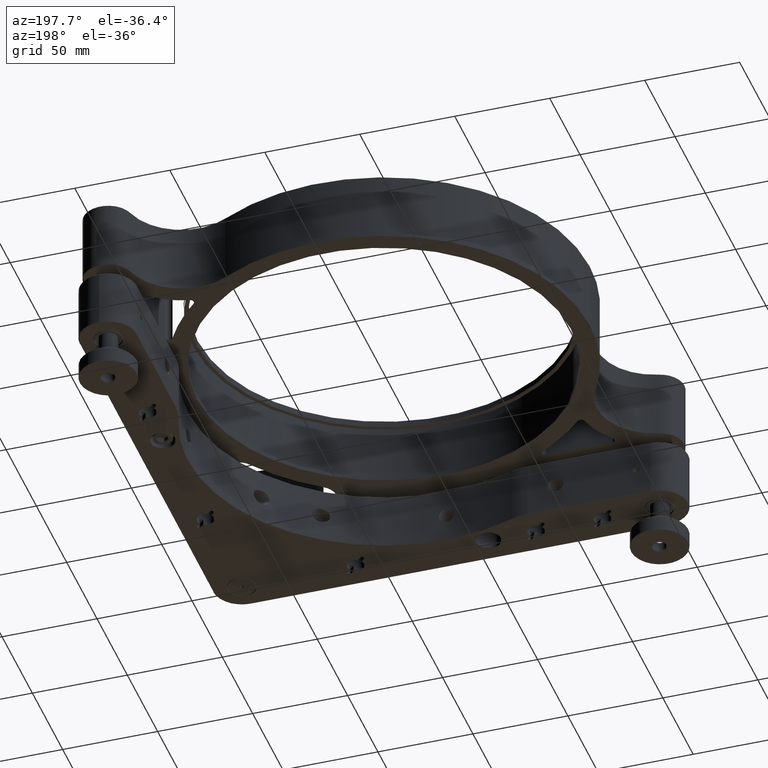
[diagram: clean part render]
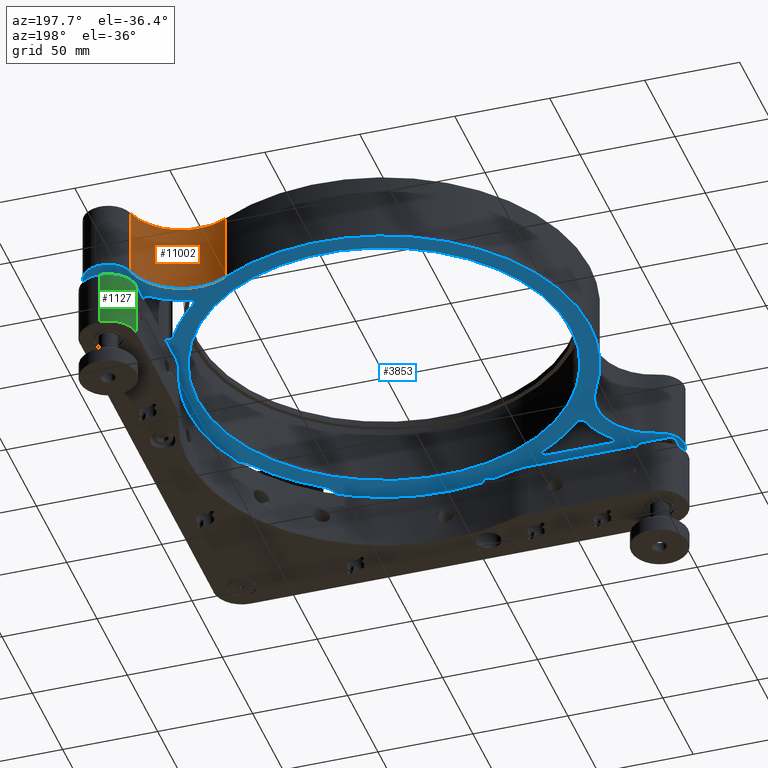
[diagram: same view with three faces highlighted in distinct colors, each labeled with its STEP entity id]
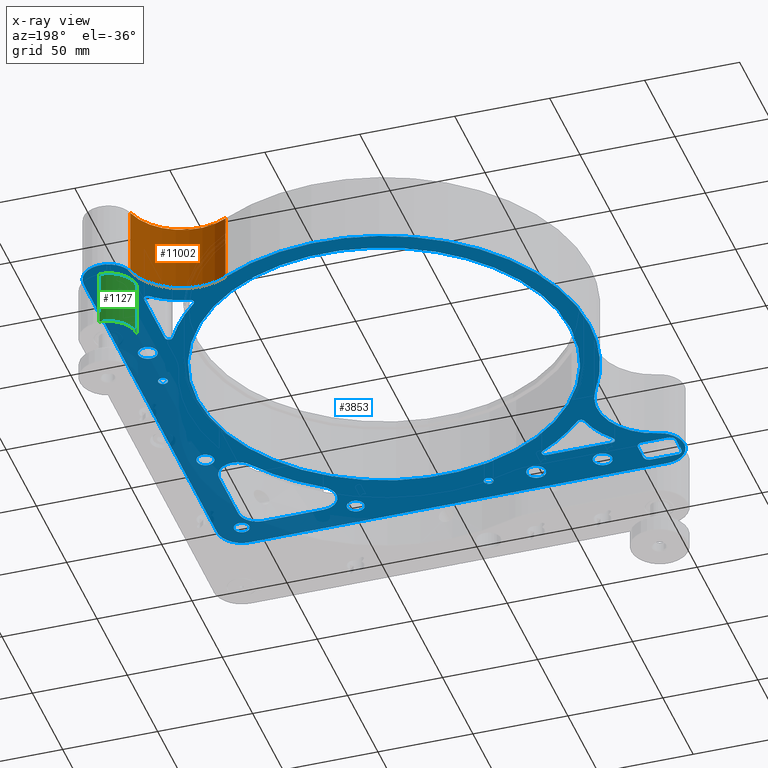
[diagram: x-ray of the same camera — body ghosted, the three highlighted faces saturated]
A machine part, auxiliary view with three faces highlighted in distinct colors.
The next image is the same camera in x-ray (body ghosted, the three faces saturated) — at least one of them is partly hidden behind the body in this view.
Their STEP definitions:

[orange] entity #11002 — the highlighted cylindrical surface (partial cylindrical patch) has radius 30 mm, axis along (-0, -0, -1).
#165 = AXIS2_PLACEMENT_3D ( 'NONE', #6759, #10565, #1960 ) ;
#293 = DIRECTION ( 'NONE',  ( -5.029013959943429289E-30, -1.224646799147301438E-16, -1.000000000000000000 ) ) ;
#617 = ORIENTED_EDGE ( 'NONE', *, *, #8552, .F. ) ;
#618 = CYLINDRICAL_SURFACE ( 'NONE', #5519, 29.99999999999974776 ) ;
#1162 = CIRCLE ( 'NONE', #165, 29.99999999999974776 ) ;
#1695 = CARTESIAN_POINT ( 'NONE',  ( -56.73887555725348619, 245.3376141936156216, 58.47156274847700530 ) ) ;
#1736 = CARTESIAN_POINT ( 'NONE',  ( -71.54070955278882593, 219.2434441480173462, 58.47056274847700763 ) ) ;
#1960 = DIRECTION ( 'NONE',  ( -1.000000000000000000, 0.000000000000000000, 0.000000000000000000 ) ) ;
#2185 = LINE ( 'NONE', #4144, #11370 ) ;
#2576 = VERTEX_POINT ( 'NONE', #10266 ) ;
#2754 = CIRCLE ( 'NONE', #3754, 29.99999999999974065 ) ;
#3524 = ORIENTED_EDGE ( 'NONE', *, *, #8802, .T. ) ;
#3754 = AXIS2_PLACEMENT_3D ( 'NONE', #5340, #9155, #11205 ) ;
#4144 = CARTESIAN_POINT ( 'NONE',  ( -71.54070955278882593, 219.2434441480173462, 58.47156274847700530 ) ) ;
#5011 = ORIENTED_EDGE ( 'NONE', *, *, #9309, .F. ) ;
#5199 = FACE_OUTER_BOUND ( 'NONE', #7907, .T. ) ;
#5270 = VERTEX_POINT ( 'NONE', #1736 ) ;
#5340 = CARTESIAN_POINT ( 'NONE',  ( -56.73887555725348619, 245.3376141936156216, 58.47056274847700763 ) ) ;
#5387 = CARTESIAN_POINT ( 'NONE',  ( -27.61872981963463403, 238.1253252213244878, 21.97056274847701474 ) ) ;
#5519 = AXIS2_PLACEMENT_3D ( 'NONE', #1695, #9949, #6566 ) ;
#6566 = DIRECTION ( 'NONE',  ( -1.000000000000000000, 0.000000000000000000, 0.000000000000000000 ) ) ;
#6759 = CARTESIAN_POINT ( 'NONE',  ( -56.73887555725348619, 245.3376141936156216, 21.97056274847713198 ) ) ;
#7781 = VECTOR ( 'NONE', #10636, 1000.000000000000000 ) ;
#7907 = EDGE_LOOP ( 'NONE', ( #3524, #10533, #5011, #617 ) ) ;
#8552 = EDGE_CURVE ( 'NONE', #2576, #5270, #2754, .T. ) ;
#8802 = EDGE_CURVE ( 'NONE', #2576, #8854, #11826, .T. ) ;
#8847 = CARTESIAN_POINT ( 'NONE',  ( -71.54070955278882593, 219.2434441480173462, 21.97056274847713553 ) ) ;
#8854 = VERTEX_POINT ( 'NONE', #5387 ) ;
#8888 = CARTESIAN_POINT ( 'NONE',  ( -27.61872981963463403, 238.1253252213244878, 58.47156274847700530 ) ) ;
#9155 = DIRECTION ( 'NONE',  ( -5.029013959943429289E-30, -1.224646799147301438E-16, -1.000000000000000000 ) ) ;
#9251 = VERTEX_POINT ( 'NONE', #8847 ) ;
#9309 = EDGE_CURVE ( 'NONE', #5270, #9251, #2185, .T. ) ;
#9692 = EDGE_CURVE ( 'NONE', #8854, #9251, #1162, .T. ) ;
#9949 = DIRECTION ( 'NONE',  ( -5.029013959943429289E-30, -1.224646799147301438E-16, -1.000000000000000000 ) ) ;
#10266 = CARTESIAN_POINT ( 'NONE',  ( -27.61872981963463403, 238.1253252213244878, 58.47056274847700763 ) ) ;
#10533 = ORIENTED_EDGE ( 'NONE', *, *, #9692, .T. ) ;
#10565 = DIRECTION ( 'NONE',  ( -5.029013959943429289E-30, -1.224646799147301438E-16, -1.000000000000000000 ) ) ;
#10636 = DIRECTION ( 'NONE',  ( -5.029013959943429289E-30, -1.224646799147301438E-16, -1.000000000000000000 ) ) ;
#11002 = ADVANCED_FACE ( 'NONE', ( #5199 ), #618, .F. ) ;
#11205 = DIRECTION ( 'NONE',  ( 1.000000000000000000, 0.000000000000000000, 0.000000000000000000 ) ) ;
#11370 = VECTOR ( 'NONE', #293, 1000.000000000000000 ) ;
#11826 = LINE ( 'NONE', #8888, #7781 ) ;

[blue] entity #3853 — the highlighted planar face has unit normal (0, 0, 1).
#15 = DIRECTION ( 'NONE',  ( 5.029013959943429289E-30, 1.224646799147301438E-16, 1.000000000000000000 ) ) ;
#31 = EDGE_CURVE ( 'NONE', #8602, #11193, #1854, .T. ) ;
#36 = CARTESIAN_POINT ( 'NONE',  ( -124.9999999999987352, 124.9999999999991473, 21.97056274847702895 ) ) ;
#56 = ORIENTED_EDGE ( 'NONE', *, *, #7583, .F. ) ;
#73 = VERTEX_POINT ( 'NONE', #1681 ) ;
#121 = CARTESIAN_POINT ( 'NONE',  ( -144.9999999999986073, 15.00000000000015277, 21.97056274847716040 ) ) ;
#127 = AXIS2_PLACEMENT_3D ( 'NONE', #3420, #5449, #646 ) ;
#165 = AXIS2_PLACEMENT_3D ( 'NONE', #6759, #10565, #1960 ) ;
#173 = DIRECTION ( 'NONE',  ( 1.000000000000000000, 0.000000000000000000, 0.000000000000000000 ) ) ;
#218 = VERTEX_POINT ( 'NONE', #8848 ) ;
#219 = PLANE ( 'NONE',  #11653 ) ;
#255 = AXIS2_PLACEMENT_3D ( 'NONE', #121, #9669, #8800 ) ;
#266 = AXIS2_PLACEMENT_3D ( 'NONE', #5717, #9651, #2990 ) ;
#288 = ORIENTED_EDGE ( 'NONE', *, *, #8955, .F. ) ;
#306 = VERTEX_POINT ( 'NONE', #7038 ) ;
#323 = EDGE_CURVE ( 'NONE', #10405, #9327, #9890, .T. ) ;
#462 = DIRECTION ( 'NONE',  ( -1.000000000000000000, 0.000000000000000000, 0.000000000000000000 ) ) ;
#463 = VERTEX_POINT ( 'NONE', #597 ) ;
#475 = CIRCLE ( 'NONE', #1480, 1.999999999999960032 ) ;
#480 = AXIS2_PLACEMENT_3D ( 'NONE', #10569, #1011, #4864 ) ;
#481 = CARTESIAN_POINT ( 'NONE',  ( -238.1253252213248004, 27.61872981963509233, 21.97056274847703961 ) ) ;
#486 = EDGE_CURVE ( 'NONE', #7936, #6182, #2678, .T. ) ;
#491 = CIRCLE ( 'NONE', #11728, 2.999999999999975131 ) ;
#521 = ORIENTED_EDGE ( 'NONE', *, *, #725, .T. ) ;
#530 = DIRECTION ( 'NONE',  ( -5.029013959943429289E-30, -1.224646799147301438E-16, -1.000000000000000000 ) ) ;
#541 = CARTESIAN_POINT ( 'NONE',  ( -26.99999999999967670, 179.4161970372784651, 21.97056274847702184 ) ) ;
#554 = DIRECTION ( 'NONE',  ( -5.029013959943429289E-30, -1.224646799147301438E-16, -1.000000000000000000 ) ) ;
#597 = CARTESIAN_POINT ( 'NONE',  ( -11.00000000000016165, 15.00000000000015277, 21.97056274847716040 ) ) ;
#620 = EDGE_CURVE ( 'NONE', #8237, #8280, #4001, .T. ) ;
#646 = DIRECTION ( 'NONE',  ( 0.000000000000000000, 1.000000000000000000, 0.000000000000000000 ) ) ;
#648 = DIRECTION ( 'NONE',  ( -1.000000000000000000, 0.000000000000000000, 0.000000000000000000 ) ) ;
#663 = CARTESIAN_POINT ( 'NONE',  ( -9.999999999999714007, 204.9999999999982094, 21.97056274847701829 ) ) ;
#680 = VECTOR ( 'NONE', #11376, 1000.000000000000000 ) ;
#720 = ORIENTED_EDGE ( 'NONE', *, *, #4214, .F. ) ;
#725 = EDGE_CURVE ( 'NONE', #2204, #2968, #3226, .T. ) ;
#786 = VERTEX_POINT ( 'NONE', #4195 ) ;
#805 = DIRECTION ( 'NONE',  ( -1.000000000000000000, 0.000000000000000000, 0.000000000000000000 ) ) ;
#821 = VERTEX_POINT ( 'NONE', #9389 ) ;
#822 = DIRECTION ( 'NONE',  ( 5.029013959943429289E-30, 1.224646799147301438E-16, 1.000000000000000000 ) ) ;
#833 = CIRCLE ( 'NONE', #11869, 108.3499999999991843 ) ;
#839 = DIRECTION ( 'NONE',  ( -5.029013959943429289E-30, -1.224646799147301438E-16, -1.000000000000000000 ) ) ;
#842 = CARTESIAN_POINT ( 'NONE',  ( -2.000000000000126565, 2.000000000000154543, 21.97056274847704316 ) ) ;
#860 = CARTESIAN_POINT ( 'NONE',  ( -58.64698575045701290, 27.00000000000012079, 21.97056274847703961 ) ) ;
#890 = ORIENTED_EDGE ( 'NONE', *, *, #2109, .F. ) ;
#902 = DIRECTION ( 'NONE',  ( 1.000000000000000000, 0.000000000000000000, 0.000000000000000000 ) ) ;
#920 = CIRCLE ( 'NONE', #6565, 4.999999999999966249 ) ;
#926 = CIRCLE ( 'NONE', #11755, 2.000000000000036415 ) ;
#928 = CARTESIAN_POINT ( 'NONE',  ( -241.9999999999986073, 10.50000000000064837, 21.97056274847704316 ) ) ;
#946 = CARTESIAN_POINT ( 'NONE',  ( -234.9999999999986073, 15.00000000000065192, 21.97056274847716040 ) ) ;
#952 = VECTOR ( 'NONE', #3187, 1000.000000000000000 ) ;
#965 = CARTESIAN_POINT ( 'NONE',  ( -9.999999999999699796, 169.9999999999991473, 21.97056274847702184 ) ) ;
#980 = FACE_BOUND ( 'NONE', #8030, .T. ) ;
#992 = ORIENTED_EDGE ( 'NONE', *, *, #6509, .T. ) ;
#1008 = CIRCLE ( 'NONE', #6258, 108.3499999999991559 ) ;
#1011 = DIRECTION ( 'NONE',  ( -5.029013959943429289E-30, -1.224646799147301438E-16, -1.000000000000000000 ) ) ;
#1020 = CARTESIAN_POINT ( 'NONE',  ( -247.9999999999986358, 15.00000000000017586, 21.97056274847716040 ) ) ;
#1034 = FACE_BOUND ( 'NONE', #3503, .T. ) ;
#1061 = DIRECTION ( 'NONE',  ( 1.000000000000000000, 0.000000000000000000, 0.000000000000000000 ) ) ;
#1064 = AXIS2_PLACEMENT_3D ( 'NONE', #9458, #839, #9271 ) ;
#1108 = CARTESIAN_POINT ( 'NONE',  ( -204.9999999999985789, 20.00000000000049383, 21.97056274847716040 ) ) ;
#1122 = CARTESIAN_POINT ( 'NONE',  ( -10.50000000000017231, 74.99999999999967315, 21.97056274847715329 ) ) ;
#1137 = ORIENTED_EDGE ( 'NONE', *, *, #8520, .F. ) ;
#1152 = ORIENTED_EDGE ( 'NONE', *, *, #5771, .T. ) ;
#1154 = DIRECTION ( 'NONE',  ( 5.029013959943429289E-30, 1.224646799147301438E-16, 1.000000000000000000 ) ) ;
#1162 = CIRCLE ( 'NONE', #165, 29.99999999999974776 ) ;
#1225 = DIRECTION ( 'NONE',  ( 5.029013959943429289E-30, 1.224646799147301438E-16, 1.000000000000000000 ) ) ;
#1243 = CARTESIAN_POINT ( 'NONE',  ( -169.9999999999986073, 20.00000000000010303, 21.97056274847716040 ) ) ;
#1336 = EDGE_LOOP ( 'NONE', ( #3195, #1137 ) ) ;
#1367 = CARTESIAN_POINT ( 'NONE',  ( -241.9999999999986073, 22.50000000000018474, 21.97056274847716040 ) ) ;
#1375 = CARTESIAN_POINT ( 'NONE',  ( -64.25349308037134222, 35.28052386987759803, 21.97056274847703961 ) ) ;
#1385 = VERTEX_POINT ( 'NONE', #7904 ) ;
#1445 = AXIS2_PLACEMENT_3D ( 'NONE', #2211, #6009, #11812 ) ;
#1446 = ORIENTED_EDGE ( 'NONE', *, *, #5436, .T. ) ;
#1459 = DIRECTION ( 'NONE',  ( -1.000000000000000000, 0.000000000000000000, 0.000000000000000000 ) ) ;
#1463 = VECTOR ( 'NONE', #4698, 1000.000000000000000 ) ;
#1480 = AXIS2_PLACEMENT_3D ( 'NONE', #11572, #6959, #2033 ) ;
#1485 = EDGE_CURVE ( 'NONE', #5663, #463, #4515, .T. ) ;
#1502 = AXIS2_PLACEMENT_3D ( 'NONE', #9175, #5236, #11166 ) ;
#1507 = EDGE_CURVE ( 'NONE', #4953, #11546, #5532, .T. ) ;
#1520 = AXIS2_PLACEMENT_3D ( 'NONE', #2333, #4347, #9921 ) ;
#1529 = CARTESIAN_POINT ( 'NONE',  ( -241.9999999999986073, 7.500000000000644818, 21.97056274847704316 ) ) ;
#1584 = ORIENTED_EDGE ( 'NONE', *, *, #5808, .F. ) ;
#1593 = CARTESIAN_POINT ( 'NONE',  ( -204.9999999999985789, 10.00000000000058797, 21.97056274847716040 ) ) ;
#1623 = EDGE_CURVE ( 'NONE', #11867, #10710, #3703, .T. ) ;
#1629 = EDGE_LOOP ( 'NONE', ( #2450, #9412 ) ) ;
#1637 = EDGE_CURVE ( 'NONE', #1816, #11883, #8541, .T. ) ;
#1645 = EDGE_CURVE ( 'NONE', #4675, #3818, #5774, .T. ) ;
#1681 = CARTESIAN_POINT ( 'NONE',  ( -169.9999999999986073, 10.00000000000017231, 21.97056274847716040 ) ) ;
#1718 = DIRECTION ( 'NONE',  ( 0.000000000000000000, 1.000000000000000000, 0.000000000000000000 ) ) ;
#1725 = ORIENTED_EDGE ( 'NONE', *, *, #8057, .T. ) ;
#1762 = DIRECTION ( 'NONE',  ( 5.029013959943429289E-30, 1.224646799147301438E-16, 1.000000000000000000 ) ) ;
#1770 = DIRECTION ( 'NONE',  ( 1.000000000000000000, 0.000000000000000000, 0.000000000000000000 ) ) ;
#1816 = VERTEX_POINT ( 'NONE', #965 ) ;
#1854 = CIRCLE ( 'NONE', #7492, 4.999999999999966249 ) ;
#1911 = VERTEX_POINT ( 'NONE', #7198 ) ;
#1917 = AXIS2_PLACEMENT_3D ( 'NONE', #6045, #3129, #173 ) ;
#1960 = DIRECTION ( 'NONE',  ( -1.000000000000000000, 0.000000000000000000, 0.000000000000000000 ) ) ;
#1966 = DIRECTION ( 'NONE',  ( -5.029013959943429289E-30, -1.224646799147301438E-16, -1.000000000000000000 ) ) ;
#1972 = LINE ( 'NONE', #11500, #9666 ) ;
#2033 = DIRECTION ( 'NONE',  ( -1.000000000000000000, 0.000000000000000000, 0.000000000000000000 ) ) ;
#2073 = VECTOR ( 'NONE', #8838, 1000.000000000000000 ) ;
#2084 = LINE ( 'NONE', #4040, #680 ) ;
#2092 = CIRCLE ( 'NONE', #8338, 12.99999999999990052 ) ;
#2109 = EDGE_CURVE ( 'NONE', #786, #3426, #8152, .T. ) ;
#2112 = FACE_BOUND ( 'NONE', #1629, .T. ) ;
#2124 = AXIS2_PLACEMENT_3D ( 'NONE', #3734, #11377, #2794 ) ;
#2143 = DIRECTION ( 'NONE',  ( 1.000000000000000000, 0.000000000000000000, 0.000000000000000000 ) ) ;
#2204 = VERTEX_POINT ( 'NONE', #8055 ) ;
#2211 = CARTESIAN_POINT ( 'NONE',  ( -14.99999999999966604, 234.9999999999982379, 21.97056274847701474 ) ) ;
#2259 = CARTESIAN_POINT ( 'NONE',  ( -241.9999999999986073, 19.50000000000018474, 21.97056274847716040 ) ) ;
#2278 = AXIS2_PLACEMENT_3D ( 'NONE', #7295, #9426, #5419 ) ;
#2333 = CARTESIAN_POINT ( 'NONE',  ( -15.00000000000013856, 74.99999999999967315, 21.97056274847715329 ) ) ;
#2357 = EDGE_CURVE ( 'NONE', #3818, #4953, #10741, .T. ) ;
#2440 = DIRECTION ( 'NONE',  ( 1.000000000000000000, 0.000000000000000000, 0.000000000000000000 ) ) ;
#2450 = ORIENTED_EDGE ( 'NONE', *, *, #10085, .F. ) ;
#2460 = VERTEX_POINT ( 'NONE', #12148 ) ;
#2490 = AXIS2_PLACEMENT_3D ( 'NONE', #5898, #1154, #5012 ) ;
#2492 = EDGE_CURVE ( 'NONE', #11546, #306, #7561, .T. ) ;
#2496 = DIRECTION ( 'NONE',  ( -1.000000000000000000, 7.516923690933632071E-16, 4.680508140089289442E-30 ) ) ;
#2539 = DIRECTION ( 'NONE',  ( 5.029013959943429289E-30, 1.224646799147301438E-16, 1.000000000000000000 ) ) ;
#2651 = EDGE_CURVE ( 'NONE', #6850, #8799, #1972, .T. ) ;
#2678 = CIRCLE ( 'NONE', #5308, 4.999999999999952038 ) ;
#2683 = CIRCLE ( 'NONE', #4296, 4.999999999999966249 ) ;
#2696 = DIRECTION ( 'NONE',  ( 1.000000000000000000, 0.000000000000000000, 0.000000000000000000 ) ) ;
#2702 = CIRCLE ( 'NONE', #11515, 39.99999999999964473 ) ;
#2722 = CIRCLE ( 'NONE', #6554, 2.499999999999974243 ) ;
#2745 = CIRCLE ( 'NONE', #11347, 39.99999999999964473 ) ;
#2767 = DIRECTION ( 'NONE',  ( -5.029013959943429289E-30, -1.224646799147301438E-16, -1.000000000000000000 ) ) ;
#2794 = DIRECTION ( 'NONE',  ( 1.000000000000000000, 0.000000000000000000, 0.000000000000000000 ) ) ;
#2854 = DIRECTION ( 'NONE',  ( -1.000000000000000000, -4.940296223818292595E-16, 4.833065085038043241E-30 ) ) ;
#2889 = CARTESIAN_POINT ( 'NONE',  ( -206.1771496335828431, 48.58669698693399397, 21.97056274847715684 ) ) ;
#2968 = VERTEX_POINT ( 'NONE', #8390 ) ;
#2972 = CARTESIAN_POINT ( 'NONE',  ( -124.9999999999987352, 124.9999999999991473, 21.97056274847702895 ) ) ;
#2990 = DIRECTION ( 'NONE',  ( 1.000000000000000000, 0.000000000000000000, 0.000000000000000000 ) ) ;
#3056 = ORIENTED_EDGE ( 'NONE', *, *, #7498, .F. ) ;
#3084 = EDGE_CURVE ( 'NONE', #11076, #9847, #1008, .T. ) ;
#3103 = CARTESIAN_POINT ( 'NONE',  ( -244.9999999999986073, 19.50000000000018474, 21.97056274847716040 ) ) ;
#3113 = FACE_BOUND ( 'NONE', #5677, .T. ) ;
#3129 = DIRECTION ( 'NONE',  ( -5.029013959943429289E-30, -1.224646799147301438E-16, -1.000000000000000000 ) ) ;
#3176 = FACE_BOUND ( 'NONE', #4673, .T. ) ;
#3182 = CARTESIAN_POINT ( 'NONE',  ( -15.00000000000013856, 15.00000000000015277, 21.97056274847716040 ) ) ;
#3187 = DIRECTION ( 'NONE',  ( 5.551115123125783935E-17, -1.000000000000000000, 1.224646799147298233E-16 ) ) ;
#3195 = ORIENTED_EDGE ( 'NONE', *, *, #11761, .F. ) ;
#3207 = LINE ( 'NONE', #8060, #11477 ) ;
#3211 = ORIENTED_EDGE ( 'NONE', *, *, #12317, .F. ) ;
#3226 = LINE ( 'NONE', #8028, #2073 ) ;
#3230 = CARTESIAN_POINT ( 'NONE',  ( -15.00000000000013856, 15.00000000000015277, 21.97056274847716040 ) ) ;
#3234 = ORIENTED_EDGE ( 'NONE', *, *, #10923, .F. ) ;
#3314 = CARTESIAN_POINT ( 'NONE',  ( -227.9999999999985789, 7.500000000000644818, 21.97056274847704316 ) ) ;
#3322 = AXIS2_PLACEMENT_3D ( 'NONE', #946, #8753, #9746 ) ;
#3335 = CIRCLE ( 'NONE', #127, 4.999999999999966249 ) ;
#3351 = CIRCLE ( 'NONE', #8588, 108.3499999999991843 ) ;
#3385 = VECTOR ( 'NONE', #5865, 1000.000000000000000 ) ;
#3389 = DIRECTION ( 'NONE',  ( -1.000000000000000000, 0.000000000000000000, 0.000000000000000000 ) ) ;
#3420 = CARTESIAN_POINT ( 'NONE',  ( -169.9999999999986073, 15.00000000000013856, 21.97056274847716040 ) ) ;
#3426 = VERTEX_POINT ( 'NONE', #5736 ) ;
#3481 = CIRCLE ( 'NONE', #1064, 9.999999999999918288 ) ;
#3503 = EDGE_LOOP ( 'NONE', ( #1446, #6976 ) ) ;
#3525 = CIRCLE ( 'NONE', #8750, 108.3499999999991843 ) ;
#3570 = EDGE_CURVE ( 'NONE', #8731, #10729, #8233, .T. ) ;
#3572 = VERTEX_POINT ( 'NONE', #5408 ) ;
#3652 = CARTESIAN_POINT ( 'NONE',  ( -124.9999999999987352, 124.9999999999991473, 21.97056274847702895 ) ) ;
#3683 = CIRCLE ( 'NONE', #2278, 4.999999999999952038 ) ;
#3697 = CARTESIAN_POINT ( 'NONE',  ( -14.99999999999966604, 234.9999999999982379, 21.97056274847701474 ) ) ;
#3703 = CIRCLE ( 'NONE', #5327, 98.34999999999929798 ) ;
#3734 = CARTESIAN_POINT ( 'NONE',  ( -204.2191264055812212, 48.17908805841800302, 21.97056274847715684 ) ) ;
#3765 = ORIENTED_EDGE ( 'NONE', *, *, #486, .F. ) ;
#3798 = CARTESIAN_POINT ( 'NONE',  ( -27.00000000000020606, 17.00000000000012790, 21.97056274847716040 ) ) ;
#3818 = VERTEX_POINT ( 'NONE', #9652 ) ;
#3836 = DIRECTION ( 'NONE',  ( -1.000000000000000000, -5.551115123125783935E-17, 4.779362060831879158E-30 ) ) ;
#3853 = ADVANCED_FACE ( 'NONE', ( #5789, #3945, #7028, #1034, #11641, #9830, #2112, #4892, #3113, #3176, #5018, #7784, #9597, #4005, #11776, #980 ), #219, .F. ) ;
#3945 = FACE_BOUND ( 'NONE', #5240, .T. ) ;
#3958 = CARTESIAN_POINT ( 'NONE',  ( -48.58669698693338290, 206.1771496335825020, 21.97056274847701829 ) ) ;
#3981 = AXIS2_PLACEMENT_3D ( 'NONE', #6021, #5196, #5065 ) ;
#4001 = LINE ( 'NONE', #842, #1463 ) ;
#4005 = FACE_OUTER_BOUND ( 'NONE', #8189, .T. ) ;
#4040 = CARTESIAN_POINT ( 'NONE',  ( -17.00000000000012790, 27.00000000000021672, 21.97056274847703961 ) ) ;
#4069 = VERTEX_POINT ( 'NONE', #6459 ) ;
#4137 = EDGE_CURVE ( 'NONE', #9251, #8776, #833, .T. ) ;
#4195 = CARTESIAN_POINT ( 'NONE',  ( -215.8010515588077851, 29.00000000000019185, 21.97056274847703961 ) ) ;
#4214 = EDGE_CURVE ( 'NONE', #8237, #8854, #11059, .T. ) ;
#4222 = CARTESIAN_POINT ( 'NONE',  ( -219.2434441480177725, 71.54070955278935173, 21.97056274847715329 ) ) ;
#4230 = ORIENTED_EDGE ( 'NONE', *, *, #9692, .F. ) ;
#4259 = ORIENTED_EDGE ( 'NONE', *, *, #1507, .F. ) ;
#4277 = AXIS2_PLACEMENT_3D ( 'NONE', #12378, #1762, #5616 ) ;
#4296 = AXIS2_PLACEMENT_3D ( 'NONE', #8172, #8358, #6468 ) ;
#4347 = DIRECTION ( 'NONE',  ( -5.029013959943429289E-30, -1.224646799147301438E-16, -1.000000000000000000 ) ) ;
#4372 = ORIENTED_EDGE ( 'NONE', *, *, #3084, .F. ) ;
#4417 = EDGE_CURVE ( 'NONE', #2460, #3572, #10312, .T. ) ;
#4432 = CARTESIAN_POINT ( 'NONE',  ( -144.9999999999986073, 15.00000000000015277, 21.97056274847716040 ) ) ;
#4446 = EDGE_CURVE ( 'NONE', #8439, #10686, #8126, .T. ) ;
#4489 = DIRECTION ( 'NONE',  ( -1.000000000000000000, 0.000000000000000000, 0.000000000000000000 ) ) ;
#4510 = ORIENTED_EDGE ( 'NONE', *, *, #12355, .F. ) ;
#4515 = CIRCLE ( 'NONE', #7322, 3.999999999999976019 ) ;
#4530 = EDGE_CURVE ( 'NONE', #821, #1385, #5303, .T. ) ;
#4541 = CARTESIAN_POINT ( 'NONE',  ( -227.9999999999985789, 22.50000000000018474, 21.97056274847716040 ) ) ;
#4563 = CARTESIAN_POINT ( 'NONE',  ( -1.999999999999640954, 234.9999999999982379, 21.97056274847701474 ) ) ;
#4570 = ORIENTED_EDGE ( 'NONE', *, *, #6425, .F. ) ;
#4615 = DIRECTION ( 'NONE',  ( 1.000000000000000000, 0.000000000000000000, 0.000000000000000000 ) ) ;
#4622 = CARTESIAN_POINT ( 'NONE',  ( -124.9999999999987352, 124.9999999999991473, 21.97056274847702895 ) ) ;
#4663 = DIRECTION ( 'NONE',  ( 5.029013959943429289E-30, 1.224646799147301438E-16, 1.000000000000000000 ) ) ;
#4673 = EDGE_LOOP ( 'NONE', ( #8889, #1725, #5460, #9681, #11734, #992, #3211, #10372 ) ) ;
#4675 = VERTEX_POINT ( 'NONE', #7350 ) ;
#4692 = ORIENTED_EDGE ( 'NONE', *, *, #11922, .F. ) ;
#4698 = DIRECTION ( 'NONE',  ( 1.721276007170807843E-18, -1.000000000000000000, 1.224646799147298233E-16 ) ) ;
#4729 = AXIS2_PLACEMENT_3D ( 'NONE', #7480, #11099, #2440 ) ;
#4736 = VERTEX_POINT ( 'NONE', #3314 ) ;
#4753 = CIRCLE ( 'NONE', #9953, 98.34999999999929798 ) ;
#4754 = CARTESIAN_POINT ( 'NONE',  ( -244.9999999999986073, 10.50000000000064837, 21.97056274847704316 ) ) ;
#4759 = DIRECTION ( 'NONE',  ( 5.029013959943429289E-30, 1.224646799147301438E-16, 1.000000000000000000 ) ) ;
#4830 = DIRECTION ( 'NONE',  ( 4.772563905464644011E-30, 1.224646799147301438E-16, 1.000000000000000000 ) ) ;
#4832 = EDGE_CURVE ( 'NONE', #11193, #8602, #6695, .T. ) ;
#4833 = ORIENTED_EDGE ( 'NONE', *, *, #1623, .T. ) ;
#4864 = DIRECTION ( 'NONE',  ( -1.000000000000000000, 0.000000000000000000, 0.000000000000000000 ) ) ;
#4892 = FACE_BOUND ( 'NONE', #10942, .T. ) ;
#4906 = EDGE_CURVE ( 'NONE', #4069, #7860, #3207, .T. ) ;
#4953 = VERTEX_POINT ( 'NONE', #1375 ) ;
#5012 = DIRECTION ( 'NONE',  ( 0.000000000000000000, 1.000000000000000000, 0.000000000000000000 ) ) ;
#5018 = FACE_BOUND ( 'NONE', #10580, .T. ) ;
#5021 = EDGE_CURVE ( 'NONE', #6182, #7936, #3683, .T. ) ;
#5030 = CARTESIAN_POINT ( 'NONE',  ( -19.50000000000010303, 74.99999999999967315, 21.97056274847715329 ) ) ;
#5051 = CARTESIAN_POINT ( 'NONE',  ( -49.57140182265090544, 202.7833470416373416, 21.97056274847701829 ) ) ;
#5065 = DIRECTION ( 'NONE',  ( 1.000000000000000000, 0.000000000000000000, 0.000000000000000000 ) ) ;
#5179 = DIRECTION ( 'NONE',  ( -5.029013959943429289E-30, -1.224646799147301438E-16, -1.000000000000000000 ) ) ;
#5196 = DIRECTION ( 'NONE',  ( 5.029013959943429289E-30, 1.224646799147301438E-16, 1.000000000000000000 ) ) ;
#5236 = DIRECTION ( 'NONE',  ( -5.029013959943429289E-30, -1.224646799147301438E-16, -1.000000000000000000 ) ) ;
#5240 = EDGE_LOOP ( 'NONE', ( #3056, #56, #3234, #4372, #4570, #5606 ) ) ;
#5254 = ORIENTED_EDGE ( 'NONE', *, *, #7266, .F. ) ;
#5278 = DIRECTION ( 'NONE',  ( 1.000000000000000000, 0.000000000000000000, 0.000000000000000000 ) ) ;
#5284 = CARTESIAN_POINT ( 'NONE',  ( -179.4161970372779535, 27.00000000000016342, 21.97056274847703961 ) ) ;
#5291 = EDGE_CURVE ( 'NONE', #1911, #4675, #3481, .T. ) ;
#5303 = CIRCLE ( 'NONE', #255, 2.499999999999974243 ) ;
#5308 = AXIS2_PLACEMENT_3D ( 'NONE', #5713, #7716, #11580 ) ;
#5327 = AXIS2_PLACEMENT_3D ( 'NONE', #4622, #4759, #902 ) ;
#5353 = ORIENTED_EDGE ( 'NONE', *, *, #7238, .F. ) ;
#5355 = CIRCLE ( 'NONE', #2124, 1.999999999999974021 ) ;
#5363 = DIRECTION ( 'NONE',  ( -1.000000000000000000, 0.000000000000000000, 0.000000000000000000 ) ) ;
#5387 = CARTESIAN_POINT ( 'NONE',  ( -27.61872981963463403, 238.1253252213244878, 21.97056274847701474 ) ) ;
#5408 = CARTESIAN_POINT ( 'NONE',  ( -74.99999999999914735, 19.50000000000013145, 21.97056274847716040 ) ) ;
#5419 = DIRECTION ( 'NONE',  ( -1.000000000000000000, 0.000000000000000000, 0.000000000000000000 ) ) ;
#5436 = EDGE_CURVE ( 'NONE', #3572, #2460, #10703, .T. ) ;
#5449 = DIRECTION ( 'NONE',  ( 5.029013959943429289E-30, 1.224646799147301438E-16, 1.000000000000000000 ) ) ;
#5451 = CARTESIAN_POINT ( 'NONE',  ( -124.9999999999987352, 124.9999999999991473, 21.97056274847702895 ) ) ;
#5460 = ORIENTED_EDGE ( 'NONE', *, *, #10167, .F. ) ;
#5502 = CARTESIAN_POINT ( 'NONE',  ( -19.00000000000011369, 15.00000000000015277, 21.97056274847716040 ) ) ;
#5532 = CIRCLE ( 'NONE', #6143, 108.3499999999992127 ) ;
#5606 = ORIENTED_EDGE ( 'NONE', *, *, #4906, .F. ) ;
#5616 = DIRECTION ( 'NONE',  ( 0.000000000000000000, 1.000000000000000000, 0.000000000000000000 ) ) ;
#5617 = ORIENTED_EDGE ( 'NONE', *, *, #5021, .F. ) ;
#5619 = AXIS2_PLACEMENT_3D ( 'NONE', #10373, #9430, #805 ) ;
#5663 = VERTEX_POINT ( 'NONE', #5502 ) ;
#5667 = DIRECTION ( 'NONE',  ( 5.029013959943429289E-30, 1.224646799147301438E-16, 1.000000000000000000 ) ) ;
#5677 = EDGE_LOOP ( 'NONE', ( #5617, #3765 ) ) ;
#5682 = EDGE_CURVE ( 'NONE', #10686, #8439, #6735, .T. ) ;
#5687 = DIRECTION ( 'NONE',  ( -1.000000000000000000, 0.000000000000000000, 0.000000000000000000 ) ) ;
#5688 = ORIENTED_EDGE ( 'NONE', *, *, #1645, .F. ) ;
#5713 = CARTESIAN_POINT ( 'NONE',  ( -14.99999999999966604, 204.9999999999982094, 21.97056274847701829 ) ) ;
#5717 = CARTESIAN_POINT ( 'NONE',  ( -227.9999999999985789, 19.50000000000018474, 21.97056274847716040 ) ) ;
#5736 = CARTESIAN_POINT ( 'NONE',  ( -215.3027926366557949, 30.32089883605991432, 21.97056274847703961 ) ) ;
#5738 = CARTESIAN_POINT ( 'NONE',  ( -74.99999999999914735, 15.00000000000016520, 21.97056274847716040 ) ) ;
#5756 = ORIENTED_EDGE ( 'NONE', *, *, #7251, .T. ) ;
#5771 = EDGE_CURVE ( 'NONE', #8280, #2204, #2092, .T. ) ;
#5774 = LINE ( 'NONE', #3798, #7135 ) ;
#5777 = CIRCLE ( 'NONE', #1520, 4.499999999999966249 ) ;
#5786 = CIRCLE ( 'NONE', #8385, 2.499999999999967581 ) ;
#5789 = FACE_BOUND ( 'NONE', #7219, .T. ) ;
#5808 = EDGE_CURVE ( 'NONE', #306, #1911, #2084, .T. ) ;
#5853 = EDGE_CURVE ( 'NONE', #9379, #8731, #7931, .T. ) ;
#5865 = DIRECTION ( 'NONE',  ( 1.000000000000000000, 5.551115123125783935E-17, -4.779362060831879158E-30 ) ) ;
#5870 = CARTESIAN_POINT ( 'NONE',  ( -245.3376141936159911, 56.73887555725409726, 21.97056274847703605 ) ) ;
#5891 = CARTESIAN_POINT ( 'NONE',  ( -178.4299496963213016, 30.73991844132321916, 21.97056274847703961 ) ) ;
#5898 = CARTESIAN_POINT ( 'NONE',  ( -74.99999999999914735, 15.00000000000016520, 21.97056274847716040 ) ) ;
#5909 = ORIENTED_EDGE ( 'NONE', *, *, #3570, .F. ) ;
#5961 = AXIS2_PLACEMENT_3D ( 'NONE', #860, #2767, #9422 ) ;
#6009 = DIRECTION ( 'NONE',  ( 5.029013959943429289E-30, 1.224646799147301438E-16, 1.000000000000000000 ) ) ;
#6021 = CARTESIAN_POINT ( 'NONE',  ( -227.9999999999985789, 10.50000000000059153, 21.97056274847704316 ) ) ;
#6042 = CARTESIAN_POINT ( 'NONE',  ( -224.9999999999985789, 7.500000000000644818, 21.97056274847704316 ) ) ;
#6045 = CARTESIAN_POINT ( 'NONE',  ( -213.8010515588077851, 29.00000000000019185, 21.97056274847703961 ) ) ;
#6067 = EDGE_CURVE ( 'NONE', #3426, #10098, #2702, .T. ) ;
#6143 = AXIS2_PLACEMENT_3D ( 'NONE', #9264, #6400, #462 ) ;
#6153 = ORIENTED_EDGE ( 'NONE', *, *, #1637, .F. ) ;
#6182 = VERTEX_POINT ( 'NONE', #11930 ) ;
#6202 = VERTEX_POINT ( 'NONE', #4222 ) ;
#6214 = ORIENTED_EDGE ( 'NONE', *, *, #1485, .F. ) ;
#6258 = AXIS2_PLACEMENT_3D ( 'NONE', #3652, #11554, #5687 ) ;
#6267 = EDGE_CURVE ( 'NONE', #8288, #8799, #9134, .T. ) ;
#6269 = CARTESIAN_POINT ( 'NONE',  ( -26.99999999999971934, 58.64698575045743212, 21.97056274847703605 ) ) ;
#6275 = VECTOR ( 'NONE', #2496, 1000.000000000000000 ) ;
#6334 = CARTESIAN_POINT ( 'NONE',  ( -224.9999999999985789, 19.50000000000018474, 21.97056274847716040 ) ) ;
#6342 = CARTESIAN_POINT ( 'NONE',  ( -14.99999999999966604, 144.9999999999991758, 21.97056274847702539 ) ) ;
#6400 = DIRECTION ( 'NONE',  ( 5.029013959943429289E-30, 1.224646799147301438E-16, 1.000000000000000000 ) ) ;
#6424 = CARTESIAN_POINT ( 'NONE',  ( -56.73887555725348619, 245.3376141936156216, 21.97056274847713198 ) ) ;
#6425 = EDGE_CURVE ( 'NONE', #7860, #11076, #6545, .T. ) ;
#6459 = CARTESIAN_POINT ( 'NONE',  ( -26.99999999999966249, 213.8010515588075009, 21.97056274847713553 ) ) ;
#6468 = DIRECTION ( 'NONE',  ( 0.000000000000000000, 1.000000000000000000, 0.000000000000000000 ) ) ;
#6509 = EDGE_CURVE ( 'NONE', #6850, #8201, #491, .T. ) ;
#6545 = CIRCLE ( 'NONE', #4729, 2.000000000000019096 ) ;
#6554 = AXIS2_PLACEMENT_3D ( 'NONE', #4432, #11378, #4489 ) ;
#6556 = DIRECTION ( 'NONE',  ( 5.029013959943429289E-30, 1.224646799147301438E-16, 1.000000000000000000 ) ) ;
#6565 = AXIS2_PLACEMENT_3D ( 'NONE', #12389, #9494, #11608 ) ;
#6639 = CARTESIAN_POINT ( 'NONE',  ( -15.00000000000013856, 15.00000000000015277, 21.97056274847716040 ) ) ;
#6644 = EDGE_CURVE ( 'NONE', #10729, #786, #12351, .T. ) ;
#6650 = ORIENTED_EDGE ( 'NONE', *, *, #4137, .F. ) ;
#6666 = EDGE_CURVE ( 'NONE', #1385, #821, #2722, .T. ) ;
#6695 = CIRCLE ( 'NONE', #7505, 4.999999999999966249 ) ;
#6703 = CARTESIAN_POINT ( 'NONE',  ( -213.8010515588077851, 27.00000000000019185, 21.97056274847703961 ) ) ;
#6735 = CIRCLE ( 'NONE', #10715, 4.999999999999952038 ) ;
#6759 = CARTESIAN_POINT ( 'NONE',  ( -56.73887555725348619, 245.3376141936156216, 21.97056274847713198 ) ) ;
#6802 = DIRECTION ( 'NONE',  ( 0.000000000000000000, 1.000000000000000000, 0.000000000000000000 ) ) ;
#6804 = LINE ( 'NONE', #11419, #3385 ) ;
#6826 = CARTESIAN_POINT ( 'NONE',  ( -19.99999999999963407, 169.9999999999991473, 21.97056274847702184 ) ) ;
#6827 = DIRECTION ( 'NONE',  ( -1.000000000000000000, 0.000000000000000000, 0.000000000000000000 ) ) ;
#6837 = ORIENTED_EDGE ( 'NONE', *, *, #323, .F. ) ;
#6850 = VERTEX_POINT ( 'NONE', #4754 ) ;
#6895 = EDGE_CURVE ( 'NONE', #8776, #6202, #3525, .T. ) ;
#6902 = AXIS2_PLACEMENT_3D ( 'NONE', #7221, #1225, #5278 ) ;
#6959 = DIRECTION ( 'NONE',  ( -5.029013959943429289E-30, -1.224646799147301438E-16, -1.000000000000000000 ) ) ;
#6962 = CARTESIAN_POINT ( 'NONE',  ( -179.4161970372779535, 27.00000000000017764, 21.97056274847703961 ) ) ;
#6976 = ORIENTED_EDGE ( 'NONE', *, *, #4417, .T. ) ;
#6982 = LINE ( 'NONE', #6042, #952 ) ;
#7028 = FACE_BOUND ( 'NONE', #10830, .T. ) ;
#7034 = DIRECTION ( 'NONE',  ( -5.029013959943429289E-30, -1.224646799147301438E-16, -1.000000000000000000 ) ) ;
#7038 = CARTESIAN_POINT ( 'NONE',  ( -16.99999999999970868, 58.64698575045743212, 21.97056274847703605 ) ) ;
#7057 = DIRECTION ( 'NONE',  ( 4.591129113935669143E-16, -1.000000000000000000, 1.224646799147298233E-16 ) ) ;
#7135 = VECTOR ( 'NONE', #2854, 1000.000000000000000 ) ;
#7158 = CIRCLE ( 'NONE', #3322, 12.99999999999992895 ) ;
#7164 = CIRCLE ( 'NONE', #7898, 29.99999999999974776 ) ;
#7198 = CARTESIAN_POINT ( 'NONE',  ( -17.00000000000012790, 27.00000000000013500, 21.97056274847703961 ) ) ;
#7219 = EDGE_LOOP ( 'NONE', ( #9876, #288, #4692, #7427, #890, #10854, #5909 ) ) ;
#7221 = CARTESIAN_POINT ( 'NONE',  ( -234.9999999999986073, 15.00000000000065192, 21.97056274847716040 ) ) ;
#7238 = EDGE_CURVE ( 'NONE', #9327, #2968, #7158, .T. ) ;
#7251 = EDGE_CURVE ( 'NONE', #10710, #11867, #4753, .T. ) ;
#7266 = EDGE_CURVE ( 'NONE', #11883, #1816, #920, .T. ) ;
#7295 = CARTESIAN_POINT ( 'NONE',  ( -14.99999999999966604, 204.9999999999982094, 21.97056274847701829 ) ) ;
#7319 = DIRECTION ( 'NONE',  ( -5.029013959943429289E-30, -1.224646799147301438E-16, -1.000000000000000000 ) ) ;
#7322 = AXIS2_PLACEMENT_3D ( 'NONE', #3230, #530, #11904 ) ;
#7350 = CARTESIAN_POINT ( 'NONE',  ( -27.00000000000020606, 17.00000000000012790, 21.97056274847716040 ) ) ;
#7386 = ORIENTED_EDGE ( 'NONE', *, *, #6666, .F. ) ;
#7427 = ORIENTED_EDGE ( 'NONE', *, *, #6067, .F. ) ;
#7435 = EDGE_CURVE ( 'NONE', #10224, #7832, #5777, .T. ) ;
#7475 = VERTEX_POINT ( 'NONE', #1243 ) ;
#7480 = CARTESIAN_POINT ( 'NONE',  ( -28.99999999999970512, 179.4161970372784651, 21.97056274847702184 ) ) ;
#7488 = ORIENTED_EDGE ( 'NONE', *, *, #4446, .T. ) ;
#7492 = AXIS2_PLACEMENT_3D ( 'NONE', #3697, #8240, #11277 ) ;
#7498 = EDGE_CURVE ( 'NONE', #8573, #4069, #926, .T. ) ;
#7505 = AXIS2_PLACEMENT_3D ( 'NONE', #9861, #5179, #8187 ) ;
#7561 = CIRCLE ( 'NONE', #10145, 9.999999999999925393 ) ;
#7582 = CARTESIAN_POINT ( 'NONE',  ( -224.9999999999985789, 10.50000000000059153, 21.97056274847704316 ) ) ;
#7583 = EDGE_CURVE ( 'NONE', #7658, #8573, #2745, .T. ) ;
#7621 = ORIENTED_EDGE ( 'NONE', *, *, #7941, .T. ) ;
#7658 = VERTEX_POINT ( 'NONE', #3958 ) ;
#7663 = EDGE_LOOP ( 'NONE', ( #7621, #10884 ) ) ;
#7716 = DIRECTION ( 'NONE',  ( -5.029013959943429289E-30, -1.224646799147301438E-16, -1.000000000000000000 ) ) ;
#7784 = FACE_BOUND ( 'NONE', #11371, .T. ) ;
#7821 = DIRECTION ( 'NONE',  ( 1.000000000000000000, 0.000000000000000000, 0.000000000000000000 ) ) ;
#7832 = VERTEX_POINT ( 'NONE', #5030 ) ;
#7848 = DIRECTION ( 'NONE',  ( -5.029013959943429289E-30, -1.224646799147301438E-16, -1.000000000000000000 ) ) ;
#7860 = VERTEX_POINT ( 'NONE', #541 ) ;
#7898 = AXIS2_PLACEMENT_3D ( 'NONE', #11295, #7848, #1770 ) ;
#7902 = DIRECTION ( 'NONE',  ( 1.000000000000000000, 5.551115123125783935E-17, -4.779362060831878457E-30 ) ) ;
#7904 = CARTESIAN_POINT ( 'NONE',  ( -147.4999999999985789, 15.00000000000015277, 21.97056274847716040 ) ) ;
#7931 = CIRCLE ( 'NONE', #480, 1.999999999999974021 ) ;
#7936 = VERTEX_POINT ( 'NONE', #663 ) ;
#7941 = EDGE_CURVE ( 'NONE', #7475, #73, #2683, .T. ) ;
#7979 = AXIS2_PLACEMENT_3D ( 'NONE', #3182, #7034, #9897 ) ;
#8028 = CARTESIAN_POINT ( 'NONE',  ( -259.9999999999968736, 2.000000000000085265, 21.97056274847704316 ) ) ;
#8030 = EDGE_LOOP ( 'NONE', ( #7386, #10544 ) ) ;
#8055 = CARTESIAN_POINT ( 'NONE',  ( -15.00000000000013856, 2.000000000000154543, 21.97056274847704316 ) ) ;
#8057 = EDGE_CURVE ( 'NONE', #8166, #12102, #11695, .T. ) ;
#8060 = CARTESIAN_POINT ( 'NONE',  ( -26.99999999999964828, 179.4161970372785220, 21.97056274847702184 ) ) ;
#8126 = CIRCLE ( 'NONE', #4277, 4.999999999999952038 ) ;
#8152 = CIRCLE ( 'NONE', #1502, 2.000000000000001776 ) ;
#8166 = VERTEX_POINT ( 'NONE', #6334 ) ;
#8172 = CARTESIAN_POINT ( 'NONE',  ( -169.9999999999986073, 15.00000000000013856, 21.97056274847716040 ) ) ;
#8179 = CIRCLE ( 'NONE', #7979, 3.999999999999976019 ) ;
#8187 = DIRECTION ( 'NONE',  ( -1.000000000000000000, 0.000000000000000000, 0.000000000000000000 ) ) ;
#8189 = EDGE_LOOP ( 'NONE', ( #4230, #720, #9636, #1152, #521, #5353, #6837, #4510, #10239, #6650 ) ) ;
#8201 = VERTEX_POINT ( 'NONE', #1529 ) ;
#8233 = LINE ( 'NONE', #5284, #6275 ) ;
#8237 = VERTEX_POINT ( 'NONE', #4563 ) ;
#8240 = DIRECTION ( 'NONE',  ( -5.029013959943429289E-30, -1.224646799147301438E-16, -1.000000000000000000 ) ) ;
#8249 = EDGE_CURVE ( 'NONE', #73, #7475, #3335, .T. ) ;
#8280 = VERTEX_POINT ( 'NONE', #11736 ) ;
#8282 = CARTESIAN_POINT ( 'NONE',  ( -19.99999999999963407, 234.9999999999982379, 21.97056274847701474 ) ) ;
#8288 = VERTEX_POINT ( 'NONE', #1367 ) ;
#8338 = AXIS2_PLACEMENT_3D ( 'NONE', #6639, #1966, #7821 ) ;
#8358 = DIRECTION ( 'NONE',  ( 5.029013959943429289E-30, 1.224646799147301438E-16, 1.000000000000000000 ) ) ;
#8385 = AXIS2_PLACEMENT_3D ( 'NONE', #6342, #11020, #10151 ) ;
#8390 = CARTESIAN_POINT ( 'NONE',  ( -234.9999999999986073, 2.000000000000640377, 21.97056274847704316 ) ) ;
#8400 = DIRECTION ( 'NONE',  ( -1.000000000000000000, 0.000000000000000000, 0.000000000000000000 ) ) ;
#8439 = VERTEX_POINT ( 'NONE', #1108 ) ;
#8461 = ORIENTED_EDGE ( 'NONE', *, *, #2357, .F. ) ;
#8504 = EDGE_CURVE ( 'NONE', #463, #5663, #8179, .T. ) ;
#8520 = EDGE_CURVE ( 'NONE', #218, #12417, #5786, .T. ) ;
#8521 = DIRECTION ( 'NONE',  ( -5.551115123125783935E-17, 1.000000000000000000, -1.224646799147298233E-16 ) ) ;
#8541 = CIRCLE ( 'NONE', #9133, 4.999999999999966249 ) ;
#8573 = VERTEX_POINT ( 'NONE', #12160 ) ;
#8588 = AXIS2_PLACEMENT_3D ( 'NONE', #10442, #822, #4615 ) ;
#8602 = VERTEX_POINT ( 'NONE', #8282 ) ;
#8630 = CARTESIAN_POINT ( 'NONE',  ( -124.9999999999987352, 124.9999999999991473, 21.97056274847702895 ) ) ;
#8688 = DIRECTION ( 'NONE',  ( 5.029013959943429289E-30, 1.224646799147301438E-16, 1.000000000000000000 ) ) ;
#8731 = VERTEX_POINT ( 'NONE', #6962 ) ;
#8750 = AXIS2_PLACEMENT_3D ( 'NONE', #2972, #15, #6827 ) ;
#8753 = DIRECTION ( 'NONE',  ( 5.029013959943429289E-30, 1.224646799147301438E-16, 1.000000000000000000 ) ) ;
#8767 = CARTESIAN_POINT ( 'NONE',  ( -223.3499999999988006, 124.9999999999991473, 21.97056274847702895 ) ) ;
#8776 = VERTEX_POINT ( 'NONE', #8961 ) ;
#8799 = VERTEX_POINT ( 'NONE', #3103 ) ;
#8800 = DIRECTION ( 'NONE',  ( -1.000000000000000000, 0.000000000000000000, 0.000000000000000000 ) ) ;
#8838 = DIRECTION ( 'NONE',  ( -1.000000000000000000, -2.706706521276047489E-16, 4.805711500239763906E-30 ) ) ;
#8847 = CARTESIAN_POINT ( 'NONE',  ( -71.54070955278882593, 219.2434441480173462, 21.97056274847713553 ) ) ;
#8848 = CARTESIAN_POINT ( 'NONE',  ( -12.49999999999967848, 144.9999999999991758, 21.97056274847702539 ) ) ;
#8854 = VERTEX_POINT ( 'NONE', #5387 ) ;
#8889 = ORIENTED_EDGE ( 'NONE', *, *, #9273, .F. ) ;
#8939 = AXIS2_PLACEMENT_3D ( 'NONE', #2259, #10797, #2143 ) ;
#8955 = EDGE_CURVE ( 'NONE', #11612, #9379, #3351, .T. ) ;
#8961 = CARTESIAN_POINT ( 'NONE',  ( -233.3499999999987722, 124.9999999999990905, 21.97056274847702895 ) ) ;
#8975 = VERTEX_POINT ( 'NONE', #7582 ) ;
#9116 = EDGE_LOOP ( 'NONE', ( #5756, #4833 ) ) ;
#9133 = AXIS2_PLACEMENT_3D ( 'NONE', #11386, #12346, #648 ) ;
#9134 = CIRCLE ( 'NONE', #8939, 2.999999999999975131 ) ;
#9175 = CARTESIAN_POINT ( 'NONE',  ( -213.8010515588077851, 29.00000000000019185, 21.97056274847703961 ) ) ;
#9251 = VERTEX_POINT ( 'NONE', #8847 ) ;
#9260 = DIRECTION ( 'NONE',  ( -5.029013959943429289E-30, -1.224646799147301438E-16, -1.000000000000000000 ) ) ;
#9264 = CARTESIAN_POINT ( 'NONE',  ( -124.9999999999987352, 124.9999999999991473, 21.97056274847702895 ) ) ;
#9271 = DIRECTION ( 'NONE',  ( 1.000000000000000000, 0.000000000000000000, 0.000000000000000000 ) ) ;
#9273 = EDGE_CURVE ( 'NONE', #8166, #8975, #6982, .T. ) ;
#9275 = ORIENTED_EDGE ( 'NONE', *, *, #5682, .T. ) ;
#9320 = CARTESIAN_POINT ( 'NONE',  ( -14.99999999999966604, 144.9999999999991758, 21.97056274847702539 ) ) ;
#9327 = VERTEX_POINT ( 'NONE', #1020 ) ;
#9372 = EDGE_LOOP ( 'NONE', ( #7488, #9275 ) ) ;
#9379 = VERTEX_POINT ( 'NONE', #5891 ) ;
#9389 = CARTESIAN_POINT ( 'NONE',  ( -142.4999999999986358, 15.00000000000015632, 21.97056274847716040 ) ) ;
#9407 = EDGE_CURVE ( 'NONE', #4736, #8975, #11991, .T. ) ;
#9412 = ORIENTED_EDGE ( 'NONE', *, *, #7435, .F. ) ;
#9422 = DIRECTION ( 'NONE',  ( -1.000000000000000000, 0.000000000000000000, 0.000000000000000000 ) ) ;
#9423 = CARTESIAN_POINT ( 'NONE',  ( -28.99999999999974776, 213.8010515588073872, 21.97056274847713553 ) ) ;
#9426 = DIRECTION ( 'NONE',  ( -5.029013959943429289E-30, -1.224646799147301438E-16, -1.000000000000000000 ) ) ;
#9430 = DIRECTION ( 'NONE',  ( -5.029013959943429289E-30, -1.224646799147301438E-16, -1.000000000000000000 ) ) ;
#9458 = CARTESIAN_POINT ( 'NONE',  ( -27.00000000000012079, 27.00000000000013500, 21.97056274847703961 ) ) ;
#9494 = DIRECTION ( 'NONE',  ( -5.029013959943429289E-30, -1.224646799147301438E-16, -1.000000000000000000 ) ) ;
#9597 = FACE_BOUND ( 'NONE', #9116, .T. ) ;
#9636 = ORIENTED_EDGE ( 'NONE', *, *, #620, .T. ) ;
#9651 = DIRECTION ( 'NONE',  ( 5.029013959943429289E-30, 1.224646799147301438E-16, 1.000000000000000000 ) ) ;
#9652 = CARTESIAN_POINT ( 'NONE',  ( -58.64698575045701290, 17.00000000000012790, 21.97056274847716040 ) ) ;
#9666 = VECTOR ( 'NONE', #8521, 1000.000000000000000 ) ;
#9669 = DIRECTION ( 'NONE',  ( -5.029013959943429289E-30, -1.224646799147301438E-16, -1.000000000000000000 ) ) ;
#9678 = ORIENTED_EDGE ( 'NONE', *, *, #5291, .F. ) ;
#9681 = ORIENTED_EDGE ( 'NONE', *, *, #6267, .T. ) ;
#9692 = EDGE_CURVE ( 'NONE', #8854, #9251, #1162, .T. ) ;
#9746 = DIRECTION ( 'NONE',  ( 1.000000000000000000, 0.000000000000000000, 0.000000000000000000 ) ) ;
#9796 = ORIENTED_EDGE ( 'NONE', *, *, #8504, .F. ) ;
#9830 = FACE_BOUND ( 'NONE', #9372, .T. ) ;
#9847 = VERTEX_POINT ( 'NONE', #5051 ) ;
#9861 = CARTESIAN_POINT ( 'NONE',  ( -14.99999999999966604, 234.9999999999982379, 21.97056274847701474 ) ) ;
#9876 = ORIENTED_EDGE ( 'NONE', *, *, #5853, .F. ) ;
#9890 = CIRCLE ( 'NONE', #6902, 12.99999999999992895 ) ;
#9897 = DIRECTION ( 'NONE',  ( -1.000000000000000000, 0.000000000000000000, 0.000000000000000000 ) ) ;
#9921 = DIRECTION ( 'NONE',  ( -1.000000000000000000, 0.000000000000000000, 0.000000000000000000 ) ) ;
#9953 = AXIS2_PLACEMENT_3D ( 'NONE', #8630, #8688, #1061 ) ;
#10079 = AXIS2_PLACEMENT_3D ( 'NONE', #5738, #11473, #6802 ) ;
#10085 = EDGE_CURVE ( 'NONE', #7832, #10224, #10996, .T. ) ;
#10098 = VERTEX_POINT ( 'NONE', #2889 ) ;
#10145 = AXIS2_PLACEMENT_3D ( 'NONE', #6269, #9260, #1459 ) ;
#10151 = DIRECTION ( 'NONE',  ( -1.000000000000000000, 0.000000000000000000, 0.000000000000000000 ) ) ;
#10167 = EDGE_CURVE ( 'NONE', #8288, #12102, #6804, .T. ) ;
#10224 = VERTEX_POINT ( 'NONE', #1122 ) ;
#10239 = ORIENTED_EDGE ( 'NONE', *, *, #6895, .F. ) ;
#10270 = DIRECTION ( 'NONE',  ( -1.000000000000000000, 0.000000000000000000, 0.000000000000000000 ) ) ;
#10312 = CIRCLE ( 'NONE', #10079, 4.499999999999966249 ) ;
#10372 = ORIENTED_EDGE ( 'NONE', *, *, #9407, .T. ) ;
#10373 = CARTESIAN_POINT ( 'NONE',  ( -15.00000000000013856, 74.99999999999967315, 21.97056274847715329 ) ) ;
#10405 = VERTEX_POINT ( 'NONE', #481 ) ;
#10442 = CARTESIAN_POINT ( 'NONE',  ( -124.9999999999987352, 124.9999999999991473, 21.97056274847702895 ) ) ;
#10544 = ORIENTED_EDGE ( 'NONE', *, *, #4530, .F. ) ;
#10565 = DIRECTION ( 'NONE',  ( -5.029013959943429289E-30, -1.224646799147301438E-16, -1.000000000000000000 ) ) ;
#10569 = CARTESIAN_POINT ( 'NONE',  ( -179.4161970372779535, 29.00000000000016342, 21.97056274847703961 ) ) ;
#10580 = EDGE_LOOP ( 'NONE', ( #12237, #11074 ) ) ;
#10686 = VERTEX_POINT ( 'NONE', #1593 ) ;
#10703 = CIRCLE ( 'NONE', #2490, 4.499999999999966249 ) ;
#10710 = VERTEX_POINT ( 'NONE', #11975 ) ;
#10715 = AXIS2_PLACEMENT_3D ( 'NONE', #12336, #2539, #1718 ) ;
#10729 = VERTEX_POINT ( 'NONE', #6703 ) ;
#10741 = CIRCLE ( 'NONE', #5961, 9.999999999999925393 ) ;
#10781 = LINE ( 'NONE', #11363, #12154 ) ;
#10797 = DIRECTION ( 'NONE',  ( 5.029013959943429289E-30, 1.224646799147301438E-16, 1.000000000000000000 ) ) ;
#10830 = EDGE_LOOP ( 'NONE', ( #8461, #5688, #9678, #1584, #11352, #4259 ) ) ;
#10854 = ORIENTED_EDGE ( 'NONE', *, *, #6644, .F. ) ;
#10884 = ORIENTED_EDGE ( 'NONE', *, *, #8249, .T. ) ;
#10923 = EDGE_CURVE ( 'NONE', #9847, #7658, #475, .T. ) ;
#10942 = EDGE_LOOP ( 'NONE', ( #5254, #6153 ) ) ;
#10996 = CIRCLE ( 'NONE', #5619, 4.499999999999966249 ) ;
#11020 = DIRECTION ( 'NONE',  ( -5.029013959943429289E-30, -1.224646799147301438E-16, -1.000000000000000000 ) ) ;
#11059 = CIRCLE ( 'NONE', #1445, 12.99999999999992895 ) ;
#11074 = ORIENTED_EDGE ( 'NONE', *, *, #4832, .F. ) ;
#11076 = VERTEX_POINT ( 'NONE', #11176 ) ;
#11099 = DIRECTION ( 'NONE',  ( -5.029013959943429289E-30, -1.224646799147301438E-16, -1.000000000000000000 ) ) ;
#11137 = DIRECTION ( 'NONE',  ( 5.029013959943429289E-30, 1.224646799147301438E-16, 1.000000000000000000 ) ) ;
#11166 = DIRECTION ( 'NONE',  ( 1.000000000000000000, 0.000000000000000000, 0.000000000000000000 ) ) ;
#11176 = CARTESIAN_POINT ( 'NONE',  ( -30.73991844132273243, 178.4299496963218701, 21.97056274847702184 ) ) ;
#11193 = VERTEX_POINT ( 'NONE', #11478 ) ;
#11277 = DIRECTION ( 'NONE',  ( -1.000000000000000000, 0.000000000000000000, 0.000000000000000000 ) ) ;
#11295 = CARTESIAN_POINT ( 'NONE',  ( -245.3376141936160479, 56.73887555725404042, 21.97056274847703605 ) ) ;
#11347 = AXIS2_PLACEMENT_3D ( 'NONE', #6424, #6556, #5363 ) ;
#11352 = ORIENTED_EDGE ( 'NONE', *, *, #2492, .F. ) ;
#11363 = CARTESIAN_POINT ( 'NONE',  ( -224.9999999999985789, 7.500000000000644818, 21.97056274847704316 ) ) ;
#11371 = EDGE_LOOP ( 'NONE', ( #6214, #9796 ) ) ;
#11376 = DIRECTION ( 'NONE',  ( -3.830073199193144930E-16, -1.000000000000000000, 1.224646799147298233E-16 ) ) ;
#11377 = DIRECTION ( 'NONE',  ( -5.029013959943429289E-30, -1.224646799147301438E-16, -1.000000000000000000 ) ) ;
#11378 = DIRECTION ( 'NONE',  ( -5.029013959943429289E-30, -1.224646799147301438E-16, -1.000000000000000000 ) ) ;
#11386 = CARTESIAN_POINT ( 'NONE',  ( -14.99999999999966604, 169.9999999999991473, 21.97056274847702184 ) ) ;
#11419 = CARTESIAN_POINT ( 'NONE',  ( -224.9999999999985789, 22.50000000000018474, 21.97056274847716040 ) ) ;
#11423 = DIRECTION ( 'NONE',  ( 1.000000000000000000, 0.000000000000000000, 0.000000000000000000 ) ) ;
#11473 = DIRECTION ( 'NONE',  ( 5.029013959943429289E-30, 1.224646799147301438E-16, 1.000000000000000000 ) ) ;
#11477 = VECTOR ( 'NONE', #7057, 1000.000000000000000 ) ;
#11478 = CARTESIAN_POINT ( 'NONE',  ( -9.999999999999699796, 234.9999999999982379, 21.97056274847701474 ) ) ;
#11500 = CARTESIAN_POINT ( 'NONE',  ( -244.9999999999986073, 7.500000000000644818, 21.97056274847704316 ) ) ;
#11515 = AXIS2_PLACEMENT_3D ( 'NONE', #5870, #4663, #11423 ) ;
#11546 = VERTEX_POINT ( 'NONE', #11771 ) ;
#11554 = DIRECTION ( 'NONE',  ( 5.029013959943429289E-30, 1.224646799147301438E-16, 1.000000000000000000 ) ) ;
#11572 = CARTESIAN_POINT ( 'NONE',  ( -48.17908805841744879, 204.2191264055807949, 21.97056274847701829 ) ) ;
#11580 = DIRECTION ( 'NONE',  ( -1.000000000000000000, 0.000000000000000000, 0.000000000000000000 ) ) ;
#11608 = DIRECTION ( 'NONE',  ( -1.000000000000000000, 0.000000000000000000, 0.000000000000000000 ) ) ;
#11612 = VERTEX_POINT ( 'NONE', #11829 ) ;
#11641 = FACE_BOUND ( 'NONE', #7663, .T. ) ;
#11653 = AXIS2_PLACEMENT_3D ( 'NONE', #36, #4830, #7902 ) ;
#11695 = CIRCLE ( 'NONE', #266, 2.999999999999975131 ) ;
#11728 = AXIS2_PLACEMENT_3D ( 'NONE', #928, #5667, #2696 ) ;
#11734 = ORIENTED_EDGE ( 'NONE', *, *, #2651, .F. ) ;
#11735 = AXIS2_PLACEMENT_3D ( 'NONE', #9320, #7319, #8400 ) ;
#11736 = CARTESIAN_POINT ( 'NONE',  ( -2.000000000000126565, 15.00000000000015277, 21.97056274847716040 ) ) ;
#11755 = AXIS2_PLACEMENT_3D ( 'NONE', #9423, #554, #3389 ) ;
#11761 = EDGE_CURVE ( 'NONE', #12417, #218, #11938, .T. ) ;
#11771 = CARTESIAN_POINT ( 'NONE',  ( -35.28052386987712197, 64.25349308037188223, 21.97056274847703605 ) ) ;
#11776 = FACE_BOUND ( 'NONE', #1336, .T. ) ;
#11812 = DIRECTION ( 'NONE',  ( -1.000000000000000000, 0.000000000000000000, 0.000000000000000000 ) ) ;
#11829 = CARTESIAN_POINT ( 'NONE',  ( -202.7833470416377395, 49.57140182265145967, 21.97056274847715684 ) ) ;
#11867 = VERTEX_POINT ( 'NONE', #8767 ) ;
#11869 = AXIS2_PLACEMENT_3D ( 'NONE', #5451, #11137, #10270 ) ;
#11883 = VERTEX_POINT ( 'NONE', #6826 ) ;
#11904 = DIRECTION ( 'NONE',  ( -1.000000000000000000, 0.000000000000000000, 0.000000000000000000 ) ) ;
#11922 = EDGE_CURVE ( 'NONE', #10098, #11612, #5355, .T. ) ;
#11930 = CARTESIAN_POINT ( 'NONE',  ( -19.99999999999961986, 204.9999999999982094, 21.97056274847701829 ) ) ;
#11938 = CIRCLE ( 'NONE', #11735, 2.499999999999967581 ) ;
#11975 = CARTESIAN_POINT ( 'NONE',  ( -26.64999999999943725, 124.9999999999991473, 21.97056274847702895 ) ) ;
#11991 = CIRCLE ( 'NONE', #3981, 2.999999999999975131 ) ;
#12036 = CARTESIAN_POINT ( 'NONE',  ( -17.49999999999963407, 144.9999999999991758, 21.97056274847702539 ) ) ;
#12102 = VERTEX_POINT ( 'NONE', #4541 ) ;
#12148 = CARTESIAN_POINT ( 'NONE',  ( -74.99999999999914735, 10.50000000000020073, 21.97056274847716040 ) ) ;
#12154 = VECTOR ( 'NONE', #3836, 1000.000000000000000 ) ;
#12160 = CARTESIAN_POINT ( 'NONE',  ( -30.32089883605947023, 215.3027926366554539, 21.97056274847713553 ) ) ;
#12237 = ORIENTED_EDGE ( 'NONE', *, *, #31, .F. ) ;
#12317 = EDGE_CURVE ( 'NONE', #4736, #8201, #10781, .T. ) ;
#12336 = CARTESIAN_POINT ( 'NONE',  ( -204.9999999999985789, 15.00000000000054001, 21.97056274847716040 ) ) ;
#12346 = DIRECTION ( 'NONE',  ( -5.029013959943429289E-30, -1.224646799147301438E-16, -1.000000000000000000 ) ) ;
#12351 = CIRCLE ( 'NONE', #1917, 2.000000000000001776 ) ;
#12355 = EDGE_CURVE ( 'NONE', #6202, #10405, #7164, .T. ) ;
#12378 = CARTESIAN_POINT ( 'NONE',  ( -204.9999999999985789, 15.00000000000054001, 21.97056274847716040 ) ) ;
#12389 = CARTESIAN_POINT ( 'NONE',  ( -14.99999999999966604, 169.9999999999991473, 21.97056274847702184 ) ) ;
#12417 = VERTEX_POINT ( 'NONE', #12036 ) ;

[green] entity #1127 — the highlighted cylindrical surface (edge-blend (fillet) strip) has radius 15 mm, axis along (-0, 0, 1).
#1127 = ADVANCED_FACE ( 'NONE', ( #10749 ), #10684, .T. ) ;
#1213 = CIRCLE ( 'NONE', #4649, 15.00000000000000000 ) ;
#1350 = CARTESIAN_POINT ( 'NONE',  ( -15.00000000000001421, 250.0000000000000000, 15.00000000000000000 ) ) ;
#1505 = EDGE_CURVE ( 'NONE', #10101, #6402, #4716, .T. ) ;
#2087 = CARTESIAN_POINT ( 'NONE',  ( -15.00000000000001421, 235.0000000000000000, 15.00000000000000000 ) ) ;
#2632 = DIRECTION ( 'NONE',  ( 0.000000000000000000, 0.000000000000000000, -1.000000000000000000 ) ) ;
#3423 = EDGE_CURVE ( 'NONE', #9501, #9261, #1213, .T. ) ;
#3579 = CARTESIAN_POINT ( 'NONE',  ( -15.00000000000001421, 235.0000000000000000, 14.70000000000003304 ) ) ;
#3708 = CARTESIAN_POINT ( 'NONE',  ( -15.00000000000001421, 250.0000000000000000, -14.69999999999997620 ) ) ;
#3759 = ORIENTED_EDGE ( 'NONE', *, *, #3423, .T. ) ;
#4200 = DIRECTION ( 'NONE',  ( 1.000000000000000000, 0.000000000000000000, 0.000000000000000000 ) ) ;
#4258 = LINE ( 'NONE', #1350, #6129 ) ;
#4649 = AXIS2_PLACEMENT_3D ( 'NONE', #3579, #2632, #12304 ) ;
#4716 = CIRCLE ( 'NONE', #7534, 15.00000000000000000 ) ;
#5083 = CARTESIAN_POINT ( 'NONE',  ( -15.00000000000001421, 250.0000000000000000, 14.70000000000003304 ) ) ;
#5113 = DIRECTION ( 'NONE',  ( -0.000000000000000000, -0.000000000000000000, -1.000000000000000000 ) ) ;
#5182 = CARTESIAN_POINT ( 'NONE',  ( -30.00000000000000000, 235.0000000000000000, -15.00000000000000000 ) ) ;
#5331 = ORIENTED_EDGE ( 'NONE', *, *, #10635, .T. ) ;
#5495 = CARTESIAN_POINT ( 'NONE',  ( -30.00000000000000000, 235.0000000000000000, 14.70000000000003304 ) ) ;
#5840 = ORIENTED_EDGE ( 'NONE', *, *, #1505, .T. ) ;
#5953 = DIRECTION ( 'NONE',  ( -0.000000000000000000, 0.000000000000000000, 1.000000000000000000 ) ) ;
#6129 = VECTOR ( 'NONE', #12088, 1000.000000000000000 ) ;
#6402 = VERTEX_POINT ( 'NONE', #9361 ) ;
#7215 = CARTESIAN_POINT ( 'NONE',  ( -15.00000000000001421, 235.0000000000000000, -14.69999999999997620 ) ) ;
#7402 = VECTOR ( 'NONE', #5113, 1000.000000000000000 ) ;
#7534 = AXIS2_PLACEMENT_3D ( 'NONE', #7215, #9211, #4200 ) ;
#9211 = DIRECTION ( 'NONE',  ( 0.000000000000000000, 0.000000000000000000, 1.000000000000000000 ) ) ;
#9261 = VERTEX_POINT ( 'NONE', #5083 ) ;
#9361 = CARTESIAN_POINT ( 'NONE',  ( -30.00000000000000000, 235.0000000000000000, -14.69999999999997620 ) ) ;
#9501 = VERTEX_POINT ( 'NONE', #5495 ) ;
#9759 = DIRECTION ( 'NONE',  ( 1.000000000000000000, 0.000000000000000000, 0.000000000000000000 ) ) ;
#9808 = LINE ( 'NONE', #5182, #7402 ) ;
#9833 = EDGE_CURVE ( 'NONE', #9501, #6402, #9808, .T. ) ;
#10101 = VERTEX_POINT ( 'NONE', #3708 ) ;
#10165 = ORIENTED_EDGE ( 'NONE', *, *, #9833, .F. ) ;
#10635 = EDGE_CURVE ( 'NONE', #9261, #10101, #4258, .T. ) ;
#10684 = CYLINDRICAL_SURFACE ( 'NONE', #10701, 15.00000000000000000 ) ;
#10701 = AXIS2_PLACEMENT_3D ( 'NONE', #2087, #5953, #9759 ) ;
#10749 = FACE_OUTER_BOUND ( 'NONE', #11159, .T. ) ;
#11159 = EDGE_LOOP ( 'NONE', ( #10165, #3759, #5331, #5840 ) ) ;
#12088 = DIRECTION ( 'NONE',  ( 0.000000000000000000, 0.000000000000000000, -1.000000000000000000 ) ) ;
#12304 = DIRECTION ( 'NONE',  ( 1.000000000000000000, 0.000000000000000000, 0.000000000000000000 ) ) ;